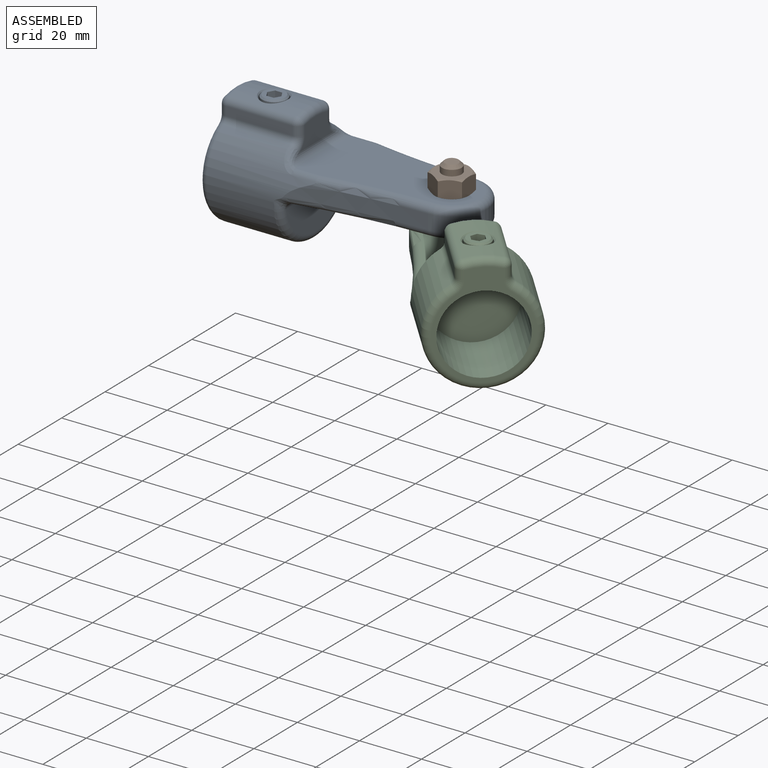
[diagram: assembled view]
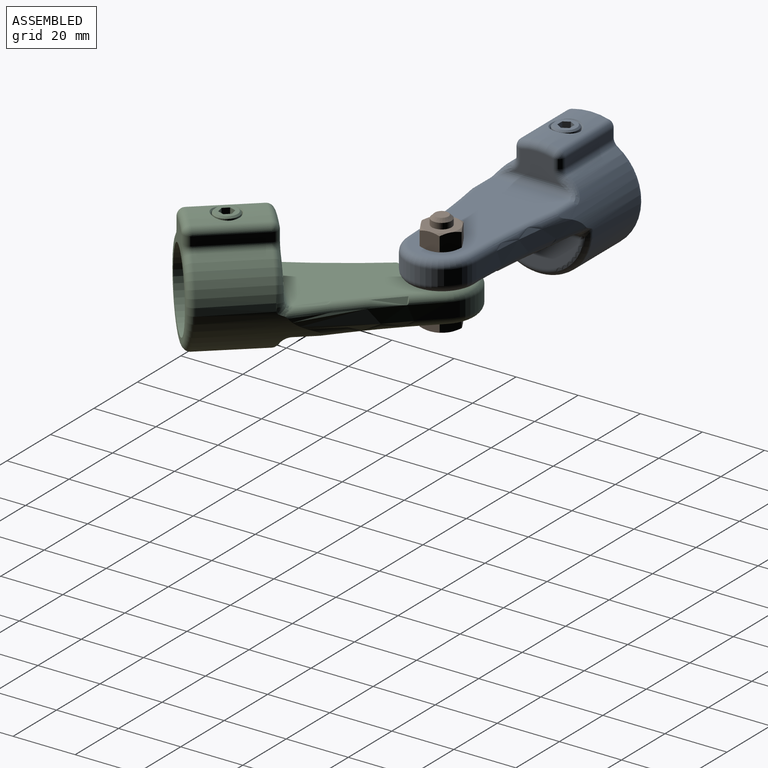
[diagram: assembled view, second angle]
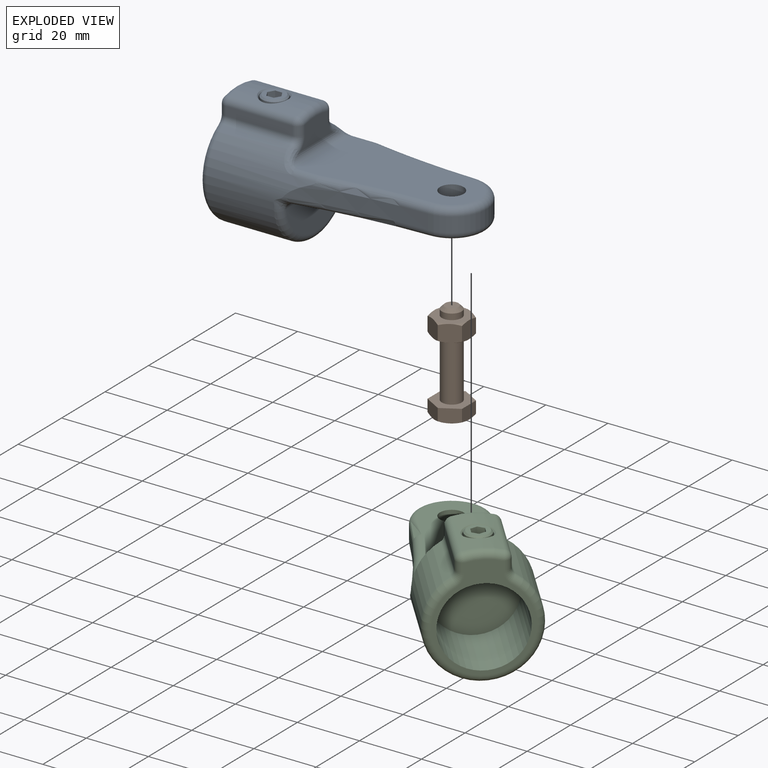
[diagram: exploded view]
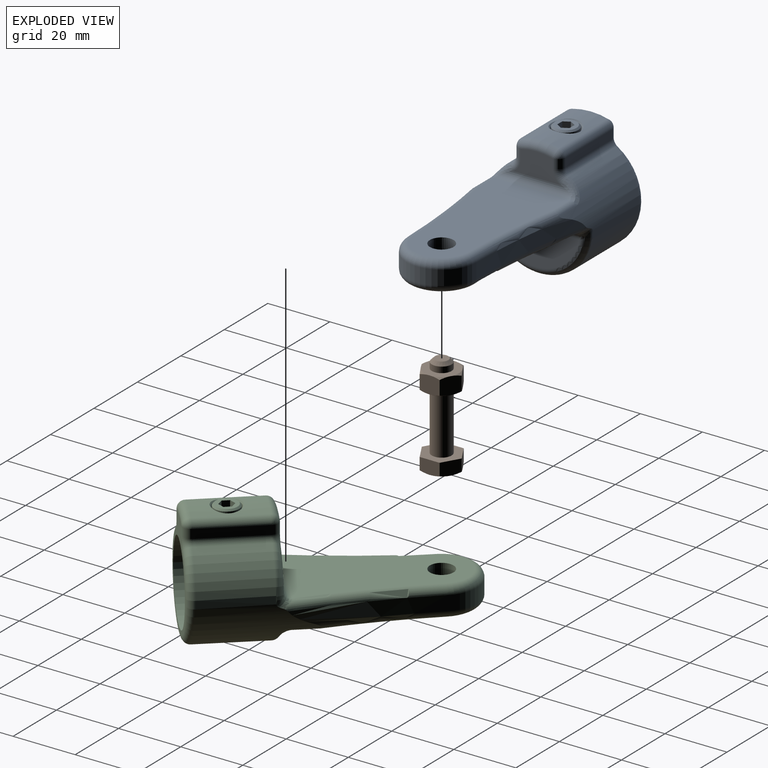
[diagram: exploded view, second angle]
ASSEMBLY  parts=3 mates=3
PART A: 66 faces, bbox 35.7x82.1x41.7 mm
  f0: cylinder r=22.06mm len=21.41mm, axis (0,1,0), area 188mm2, adj f18,f29,f30,f37,f38
  f1: cylinder r=16.51mm len=33.69mm, axis (0,1,0), area 1940.8mm2, adj f5,f7,f35,f40,f44,f45,f47,f48
  f2: plane 21.41x2.95mm, normal (1,0,0), area 63.2mm2, adj f38,f39,f46,f47
  f3: plane 21.41x2.95mm, normal (-1,0,0), area 63.2mm2, adj f29,f31,f35,f36
  f4: plane 33.82x28.27mm, normal (0,1,0), area 182.8mm2, adj f12,f30,f31,f34,f39,f40,f43
  f5: cylinder r=228.6mm len=43.14mm, axis (0,0,1), area 189.8mm2, adj f1,f6,f48,f57
  f6: cylinder r=11.29mm len=22.57mm, axis (0,0,1), area 167mm2, adj f5,f7,f51,f58
  f7: cylinder r=228.6mm len=43.14mm, axis (0,0,1), area 189.8mm2, adj f1,f6,f54,f59
  f8: cylinder r=3.81mm len=9.53mm, axis (0,0,1), area 228mm2, adj f9,f27
  f9: plane 50.23x24.39mm, normal (0,0,1), area 946.7mm2, adj f8,f44,f48,f51,f52,f54,f56
  f10: plane 15.26x7.79mm, normal (0,-1,0), area 84.9mm2, adj f36,f37,f41,f45,f46,f50,f52,f53
  f11: plane 27.87x11.77mm, normal (0,-1,0), area 247mm2, adj f60,f62,f63,f64
  f12: cylinder r=12.7mm len=25.4mm, axis (0,1,0), area 1783.6mm2, adj f4,f13
  f13: plane 25.4x25.4mm, normal (0,1,0), area 506.7mm2, adj f12
  f14: cylinder r=4.22mm len=8.45mm, axis (0,0,-1), area 171.5mm2, adj f16,f18
  f15: cylinder r=3.97mm len=7.94mm, axis (0,0,-1), area 165mm2, adj f16,f19
  f16: plane 8.45x8.45mm, normal (0,0,1), area 6.5mm2, adj f14,f15
  f17: plane 6.92x6.92mm, normal (0,0,1), area 24mm2, adj f19,f20,f21,f22,f23,f24,f25
  f18: bspline ~9.29x9.11mm, area 15.8mm2, adj f0,f14
  f19: cone r=3.46mm half-angle=45deg, axis (0,0,-1), area 16.8mm2, adj f15,f17
  f20: plane 3.18x1.98mm, normal (0.5,-0.87,0), area 7.3mm2, adj f17,f21,f25,f26
  f21: plane 3.18x1.98mm, normal (-0.5,-0.87,0), area 7.3mm2, adj f17,f20,f22,f26
  f22: plane 3.18x2.29mm, normal (-1,0,0), area 7.3mm2, adj f17,f21,f23,f26
  f23: plane 3.18x1.98mm, normal (-0.5,0.87,0), area 7.3mm2, adj f17,f22,f24,f26
  f24: plane 3.18x1.98mm, normal (0.5,0.87,0), area 7.3mm2, adj f17,f23,f25,f26
  f25: plane 3.18x2.29mm, normal (1,0,0), area 7.3mm2, adj f17,f20,f24,f26
  f26: plane 4.58x3.96mm, normal (0,0,1), area 13.6mm2, adj f20,f21,f22,f23,f24,f25
  f27: plane 50.23x27.16mm, normal (0,0,-1), area 956.6mm2, adj f8,f57,f58,f59,f63
  f28: sphere r=2.37mm, area 4.2mm2, adj f29,f30,f31
  f29: cylinder r=2.37mm len=21.41mm, axis (0,1,0), area 66.2mm2, adj f0,f3,f28,f32
  f30: torus R=19.69mm, axis (0,1,0), area 42.7mm2, adj f0,f4,f28,f33
  f31: cylinder r=2.37mm len=2.95mm, axis (0,0,1), area 11mm2, adj f3,f4,f28,f34
  f32: sphere r=2.37mm, area 10.7mm2, adj f29,f36,f37
  f33: sphere r=2.37mm, area 10.7mm2, adj f30,f38,f39
  f34: torus R=4.75mm, axis (0,1,0), area 12.2mm2, adj f4,f31,f35,f40
  f35: cylinder r=2.37mm len=21.41mm, axis (0,1,0), area 51.5mm2, adj f1,f3,f34,f41
  f36: cylinder r=2.37mm len=2.95mm, axis (0,0,1), area 11mm2, adj f3,f10,f32,f41
  f37: torus R=19.69mm, axis (0,1,0), area 42.7mm2, adj f0,f10,f32,f42
  f38: cylinder r=2.37mm len=21.41mm, axis (0,1,0), area 66.2mm2, adj f0,f2,f33,f42
  f39: cylinder r=2.37mm len=2.95mm, axis (0,0,-1), area 11mm2, adj f2,f4,f33,f43
  f40: torus R=14.14mm, axis (0,1,0), area 301.6mm2, adj f1,f4,f34,f43
  f41: torus R=4.75mm, axis (0,1,0), area 12.2mm2, adj f10,f35,f36,f45
  f42: sphere r=2.37mm, area 7.3mm2, adj f37,f38,f46
  f43: torus R=4.75mm, axis (0,1,0), area 12.2mm2, adj f4,f39,f40,f47
  f44: cylinder r=2.37mm len=7.53mm, axis (0,1,0), area 18.4mm2, adj f1,f9,f48,f49
  f45: torus R=14.14mm, axis (0,1,0), area 0.7mm2, adj f1,f10,f41,f49
  f46: cylinder r=2.37mm len=2.95mm, axis (0,0,-1), area 11mm2, adj f2,f10,f42,f50
  f47: cylinder r=2.37mm len=21.41mm, axis (0,1,0), area 51.5mm2, adj f1,f2,f43,f50
  f48: torus R=230.97mm, axis (0,0,-1), area 128.9mm2, adj f1,f5,f9,f44,f51
  f49: bspline ~8.07x6.52mm, area 23.3mm2, adj f1,f44,f45,f52
  f50: torus R=4.75mm, axis (0,1,0), area 12.2mm2, adj f10,f46,f47,f53
  f51: torus R=8.91mm, axis (0,0,-1), area 120.5mm2, adj f6,f9,f48,f54
  f52: cylinder r=2.37mm len=24.39mm, axis (1,0,0), area 73.9mm2, adj f9,f10,f49,f55
  f53: torus R=14.14mm, axis (0,1,0), area 0.7mm2, adj f1,f10,f50,f55
  f54: torus R=230.97mm, axis (0,0,-1), area 128.9mm2, adj f1,f7,f9,f51,f56
  f55: bspline ~7.82x6.37mm, area 23.3mm2, adj f1,f52,f53,f56
  f56: cylinder r=2.37mm len=7.53mm, axis (0,1,0), area 18.4mm2, adj f1,f9,f54,f55
  f57: torus R=230.97mm, axis (0,0,1), area 161.6mm2, adj f1,f5,f27,f58,f61,f62
  f58: torus R=8.91mm, axis (0,0,1), area 120.5mm2, adj f6,f27,f57,f59
  f59: torus R=230.97mm, axis (0,0,1), area 161.6mm2, adj f1,f7,f27,f58,f64,f65
  f60: torus R=14.14mm, axis (0,1,0), area 177.1mm2, adj f1,f11,f61,f65
  f61: bspline ~5.75x3.77mm, area 9.9mm2, adj f1,f57,f60,f62
  f62: bspline ~2.47x2.45mm, area 0.9mm2, adj f11,f57,f61,f63
  f63: cylinder r=2.37mm len=27.16mm, axis (1,0,0), area 101.3mm2, adj f11,f27,f62,f64
  f64: bspline ~2.47x2.45mm, area 0.9mm2, adj f11,f59,f63,f65
  f65: bspline ~5.51x3.78mm, area 9.9mm2, adj f1,f59,f60,f64
PART B: 38 faces, bbox 13.4x13.4x32.4 mm
  f0: plane 6.09x6.08mm, normal (0.5,-0.87,0), area 33.5mm2, adj f1,f5,f6,f11,f16,f21
  f1: plane 6.95x6.09mm, normal (1,0,0), area 33.5mm2, adj f0,f2,f10,f11,f20,f21
  f2: plane 6.09x6.08mm, normal (0.5,0.87,0), area 33.5mm2, adj f1,f3,f9,f10,f19,f20
  f3: plane 6.09x6.08mm, normal (-0.5,0.87,0), area 33.5mm2, adj f2,f4,f8,f9,f18,f19
  f4: plane 6.95x6.09mm, normal (-1,0,0), area 33.5mm2, adj f3,f5,f7,f8,f17,f18
  f5: plane 6.09x6.08mm, normal (-0.5,-0.87,0), area 33.5mm2, adj f0,f4,f6,f7,f16,f17
  f6: cone r=5.56mm half-angle=60deg, axis (0,0,-1), area 3mm2, adj f0,f5,f15
  f7: cone r=5.56mm half-angle=60deg, axis (0,0,-1), area 3mm2, adj f4,f5,f15
  f8: cone r=5.56mm half-angle=60deg, axis (0,0,-1), area 3mm2, adj f3,f4,f15
  f9: cone r=5.56mm half-angle=60deg, axis (0,0,-1), area 3mm2, adj f2,f3,f15
  f10: cone r=5.56mm half-angle=60deg, axis (0,0,-1), area 3mm2, adj f1,f2,f15
  f11: cone r=5.56mm half-angle=60deg, axis (0,0,-1), area 3mm2, adj f0,f1,f15
  f12: plane 4.32x4.32mm, normal (0,0,1), area 14.6mm2, adj f13
  f13: cone r=3.17mm half-angle=45deg, axis (0,0,-1), area 24.1mm2, adj f12,f14
  f14: cylinder r=3.17mm len=6.35mm, axis (0,0,-1), area 38mm2, adj f13,f15
  f15: plane 11.11x11.11mm, normal (0,0,1), area 65.3mm2, adj f6,f7,f8,f9,f10,f11,f14
  f16: cone r=5.56mm half-angle=60deg, axis (0,0,1), area 3mm2, adj f0,f5,f37
  f17: cone r=5.56mm half-angle=60deg, axis (0,0,1), area 3mm2, adj f4,f5,f37
  f18: cone r=5.56mm half-angle=60deg, axis (0,0,1), area 3mm2, adj f3,f4,f37
  f19: cone r=5.56mm half-angle=60deg, axis (0,0,1), area 3mm2, adj f2,f3,f37
  f20: cone r=5.56mm half-angle=60deg, axis (0,0,1), area 3mm2, adj f1,f2,f37
  f21: cone r=5.56mm half-angle=60deg, axis (0,0,1), area 3mm2, adj f0,f1,f37
  f22: plane 11.11x11.11mm, normal (0,0,-1), area 97mm2, adj f23,f24,f25,f26,f27,f28
  f23: cone r=5.56mm half-angle=60deg, axis (0,0,1), area 3mm2, adj f22,f29,f30
  f24: cone r=5.56mm half-angle=60deg, axis (0,0,1), area 3mm2, adj f22,f30,f31
  f25: cone r=5.56mm half-angle=60deg, axis (0,0,1), area 3mm2, adj f22,f31,f32
  f26: cone r=5.56mm half-angle=60deg, axis (0,0,1), area 3mm2, adj f22,f32,f33
  f27: cone r=5.56mm half-angle=60deg, axis (0,0,1), area 3mm2, adj f22,f29,f34
  f28: cone r=5.56mm half-angle=60deg, axis (0,0,1), area 3mm2, adj f22,f33,f34
  f29: plane 6.08x4.9mm, normal (-0.5,-0.87,0), area 26.9mm2, adj f23,f27,f30,f34,f35
  f30: plane 6.95x4.9mm, normal (-1,0,0), area 26.9mm2, adj f23,f24,f29,f31,f35
  f31: plane 6.08x4.9mm, normal (-0.5,0.87,0), area 26.9mm2, adj f24,f25,f30,f32,f35
  f32: plane 6.08x4.9mm, normal (0.5,0.87,0), area 26.9mm2, adj f25,f26,f31,f33,f35
  f33: plane 6.95x4.9mm, normal (1,0,0), area 26.9mm2, adj f26,f28,f32,f34,f35
  f34: plane 6.08x4.9mm, normal (0.5,-0.87,0), area 26.9mm2, adj f27,f28,f29,f33,f35
  f35: plane 12.83x11.11mm, normal (0,0,1), area 75.3mm2, adj f29,f30,f31,f32,f33,f34,f36
  f36: cylinder r=3.17mm len=19.05mm, axis (0,0,-1), area 380mm2, adj f35,f37
  f37: plane 11.11x11.11mm, normal (0,0,-1), area 65.3mm2, adj f16,f17,f18,f19,f20,f21,f36
PART C: 66 faces, bbox 35.7x82.1x41.7 mm
  f0: plane 33.82x28.27mm, normal (0,-1,0), area 182.8mm2, adj f12,f29,f34,f35,f37,f38,f39
  f1: cylinder r=16.51mm len=33.69mm, axis (0,-1,0), area 1947.2mm2, adj f2,f4,f33,f36,f39,f40,f41,f42
  f2: cylinder r=228.6mm len=43.14mm, axis (0,0,1), area 189.8mm2, adj f1,f3,f46,f51
  f3: cylinder r=11.29mm len=22.57mm, axis (0,0,1), area 167mm2, adj f2,f4,f43,f50
  f4: cylinder r=228.6mm len=43.14mm, axis (0,0,1), area 189.8mm2, adj f1,f3,f41,f49
  f5: cylinder r=3.81mm len=9.53mm, axis (0,0,1), area 228mm2, adj f10,f27
  f6: cylinder r=22.06mm len=21.41mm, axis (0,-1,0), area 188mm2, adj f18,f28,f29,f30,f56
  f7: plane 21.41x2.95mm, normal (-1,0,0), area 63.2mm2, adj f28,f33,f34,f58
  f8: plane 21.41x2.95mm, normal (1,0,0), area 63.2mm2, adj f30,f35,f36,f54
  f9: plane 27.87x17.32mm, normal (0,1,0), area 308.8mm2, adj f52,f53,f54,f56,f58,f59,f60,f62
  f10: plane 50.23x24.39mm, normal (0,0,-1), area 946.7mm2, adj f5,f40,f41,f43,f44,f46,f48
  f11: plane 15.26x2.24mm, normal (0,1,0), area 23.1mm2, adj f44,f45
  f12: cylinder r=12.7mm len=25.4mm, axis (0,-1,0), area 1783.6mm2, adj f0,f13
  f13: plane 25.4x25.4mm, normal (0,-1,0), area 506.7mm2, adj f12
  f14: cylinder r=4.22mm len=8.45mm, axis (0,0,-1), area 171.5mm2, adj f16,f18
  f15: cylinder r=3.97mm len=7.94mm, axis (0,0,-1), area 165mm2, adj f16,f19
  f16: plane 8.45x8.45mm, normal (0,0,1), area 6.5mm2, adj f14,f15
  f17: plane 6.92x6.92mm, normal (0,0,1), area 24mm2, adj f19,f20,f21,f22,f23,f24,f25
  f18: bspline ~9.29x9.11mm, area 15.8mm2, adj f6,f14
  f19: cone r=3.46mm half-angle=45deg, axis (0,0,-1), area 16.8mm2, adj f15,f17
  f20: plane 3.18x1.98mm, normal (-0.5,0.87,0), area 7.3mm2, adj f17,f21,f25,f26
  f21: plane 3.18x1.98mm, normal (0.5,0.87,0), area 7.3mm2, adj f17,f20,f22,f26
  f22: plane 3.18x2.29mm, normal (1,0,0), area 7.3mm2, adj f17,f21,f23,f26
  f23: plane 3.18x1.98mm, normal (0.5,-0.87,0), area 7.3mm2, adj f17,f22,f24,f26
  f24: plane 3.18x1.98mm, normal (-0.5,-0.87,0), area 7.3mm2, adj f17,f23,f25,f26
  f25: plane 3.18x2.29mm, normal (-1,0,0), area 7.3mm2, adj f17,f20,f24,f26
  f26: plane 4.58x3.96mm, normal (0,0,1), area 13.6mm2, adj f20,f21,f22,f23,f24,f25
  f27: plane 50.23x27.16mm, normal (0,0,1), area 956.6mm2, adj f5,f49,f50,f51,f63
  f28: cylinder r=2.37mm len=21.41mm, axis (0,-1,0), area 66.2mm2, adj f6,f7,f31,f57
  f29: torus R=19.69mm, axis (0,-1,0), area 42.7mm2, adj f0,f6,f31,f32
  f30: cylinder r=2.37mm len=21.41mm, axis (0,-1,0), area 66.2mm2, adj f6,f8,f32,f55
  f31: sphere r=2.37mm, area 7.3mm2, adj f28,f29,f34
  f32: sphere r=2.37mm, area 7.3mm2, adj f29,f30,f35
  f33: cylinder r=2.37mm len=21.41mm, axis (0,-1,0), area 51.5mm2, adj f1,f7,f37,f59
  f34: cylinder r=2.37mm len=2.95mm, axis (0,0,-1), area 11mm2, adj f0,f7,f31,f37
  f35: cylinder r=2.37mm len=2.95mm, axis (0,0,1), area 11mm2, adj f0,f8,f32,f38
  f36: cylinder r=2.37mm len=21.41mm, axis (0,-1,0), area 51.5mm2, adj f1,f8,f38,f53
  f37: torus R=4.75mm, axis (0,-1,0), area 12.2mm2, adj f0,f33,f34,f39
  f38: torus R=4.75mm, axis (0,-1,0), area 12.2mm2, adj f0,f35,f36,f39
  f39: torus R=14.14mm, axis (0,-1,0), area 301.6mm2, adj f0,f1,f37,f38
  f40: cylinder r=2.37mm len=7.53mm, axis (0,-1,0), area 18.4mm2, adj f1,f10,f41,f42
  f41: torus R=230.97mm, axis (0,0,1), area 128.9mm2, adj f1,f4,f10,f40,f43
  f42: bspline ~8.07x6.52mm, area 23.3mm2, adj f1,f40,f44,f45
  f43: torus R=8.91mm, axis (0,0,1), area 120.5mm2, adj f3,f10,f41,f46
  f44: cylinder r=2.37mm len=24.39mm, axis (-1,0,0), area 73.9mm2, adj f10,f11,f42,f47
  f45: torus R=14.14mm, axis (0,-1,0), area 66.5mm2, adj f1,f11,f42,f47
  f46: torus R=230.97mm, axis (0,0,1), area 128.9mm2, adj f1,f2,f10,f43,f48
  f47: bspline ~7.82x6.37mm, area 23.3mm2, adj f1,f44,f45,f48
  f48: cylinder r=2.37mm len=7.53mm, axis (0,-1,0), area 18.4mm2, adj f1,f10,f46,f47
  f49: torus R=230.97mm, axis (0,0,1), area 161.6mm2, adj f1,f4,f27,f50,f64,f65
  f50: torus R=8.91mm, axis (0,0,1), area 120.5mm2, adj f3,f27,f49,f51
  f51: torus R=230.97mm, axis (0,0,1), area 161.6mm2, adj f1,f2,f27,f50,f61,f62
  f52: torus R=14.14mm, axis (0,-1,0), area 56mm2, adj f1,f9,f53,f61
  f53: torus R=4.75mm, axis (0,-1,0), area 12.2mm2, adj f9,f36,f52,f54
  f54: cylinder r=2.37mm len=2.95mm, axis (0,0,1), area 11mm2, adj f8,f9,f53,f55
  f55: sphere r=2.37mm, area 4.7mm2, adj f30,f54,f56
  f56: torus R=19.69mm, axis (0,-1,0), area 42.7mm2, adj f6,f9,f55,f57
  f57: sphere r=2.37mm, area 7.3mm2, adj f28,f56,f58
  f58: cylinder r=2.37mm len=2.95mm, axis (0,0,-1), area 11mm2, adj f7,f9,f57,f59
  f59: torus R=4.75mm, axis (0,-1,0), area 12.2mm2, adj f9,f33,f58,f60
  f60: torus R=14.14mm, axis (0,-1,0), area 56mm2, adj f1,f9,f59,f65
  f61: bspline ~5.51x3.78mm, area 9.9mm2, adj f1,f51,f52,f62
  f62: bspline ~2.47x2.45mm, area 0.9mm2, adj f9,f51,f61,f63
  f63: cylinder r=2.37mm len=27.16mm, axis (1,0,0), area 101.3mm2, adj f9,f27,f62,f64
  f64: bspline ~2.47x2.45mm, area 0.9mm2, adj f9,f49,f63,f65
  f65: bspline ~5.75x3.77mm, area 9.9mm2, adj f1,f49,f60,f64
PLACE A rot(axis=(0,0,1),90deg) t=(72.44,-4.1,13.89)mm
PLACE B t=(2.59,-73.95,13.89)mm
PLACE C rot(axis=(0,0,1),42deg) t=(49.33,-56.01,13.89)mm
MATE planar A.f9 <-> B.f37  axis (0,0,1) through (2.78,4.81,23.42)mm
MATE fastened A.f6 <-> C.f3  axis (0,0,-1) through (2.59,-4.1,13.89)mm
MATE cylindrical A.f6 <-> B.f6  axis (0,0,1) through (2.59,-4.1,23.42)mm
